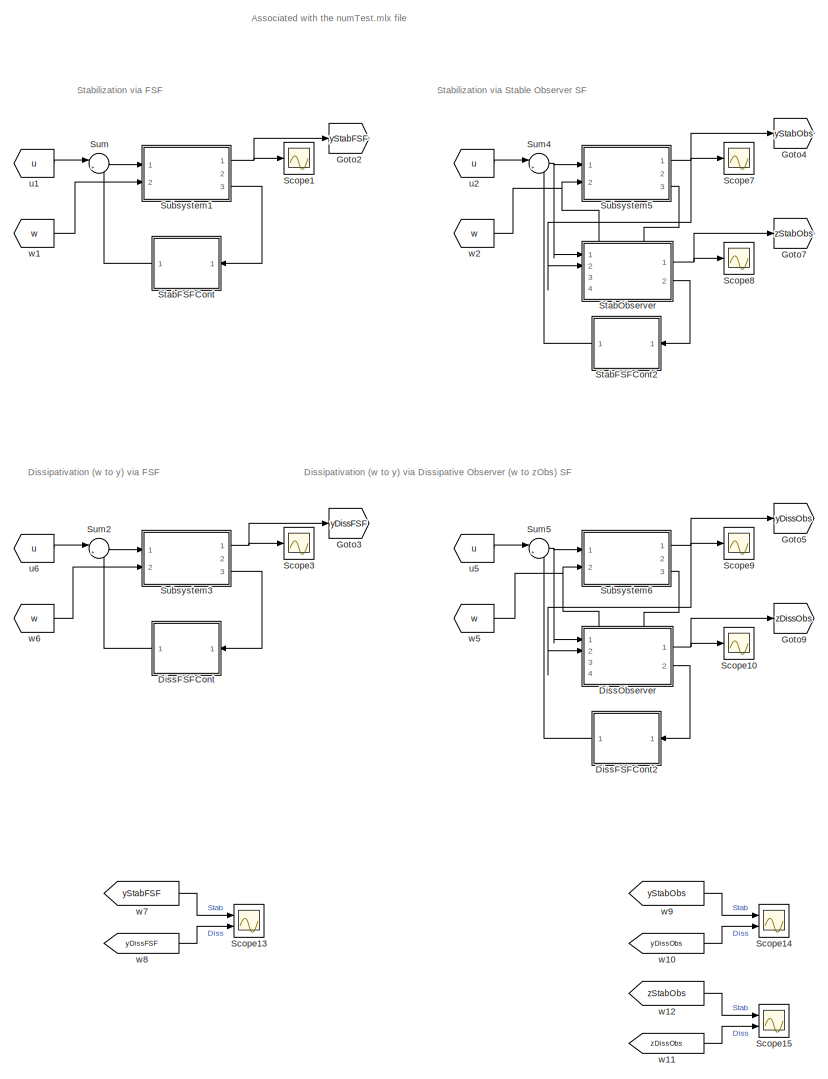
[diagram: root canvas - part 1/3, center side, full height]
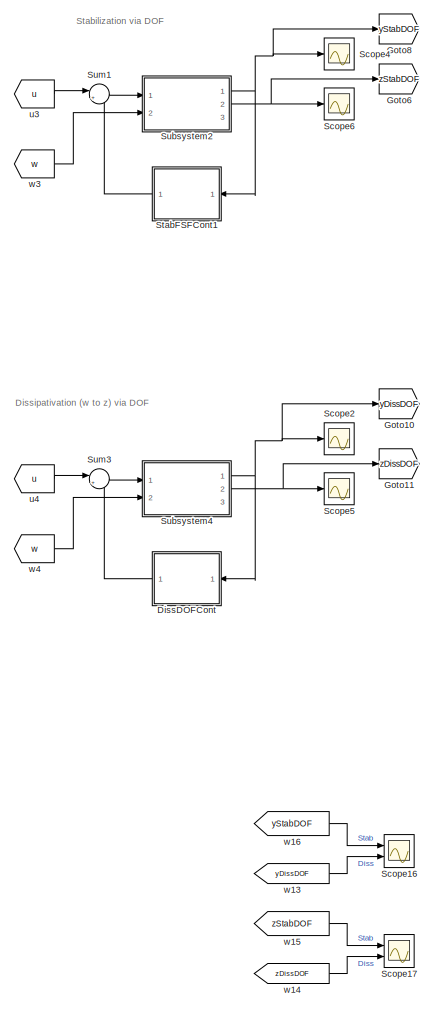
[diagram: root canvas - part 2/3, right side, full height]
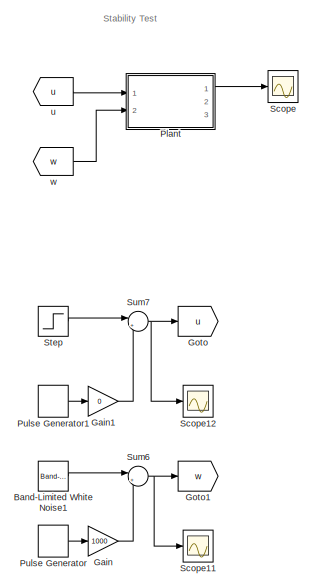
[diagram: root canvas - part 3/3, middle left region]
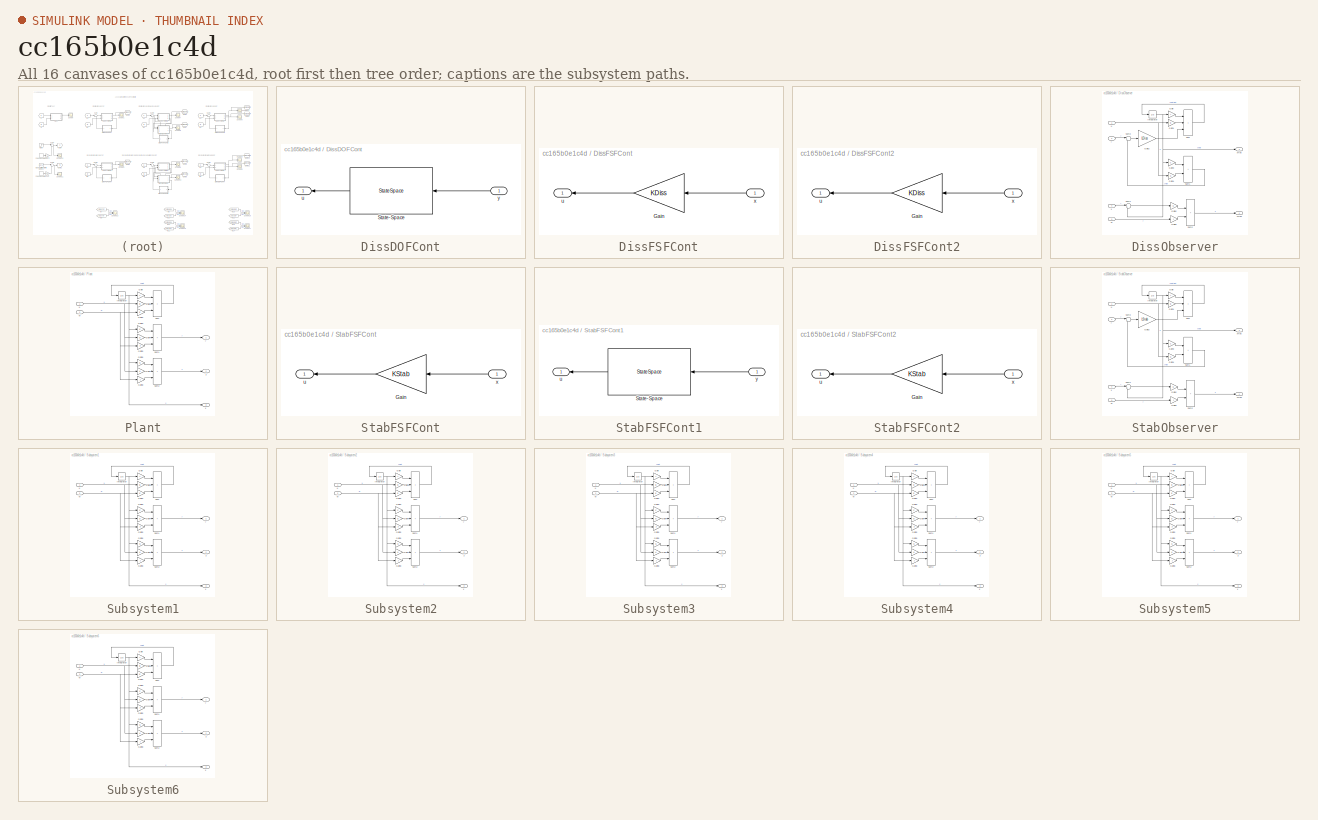
[diagram: thumbnail index - all 16 canvases of the model, root first then tree order]
MODEL slx_cc165b0e1c4d
KIND model
CONFIG AbsTol = auto
CONFIG EnableMultiTasking = off
CONFIG FixedStep = auto
CONFIG MaxStep = auto
CONFIG MinStep = auto
CONFIG RelTol = 1e-3
CONFIG SampleTimeConstraint = Unconstrained
CONFIG SolverName = VariableStepAuto
CONFIG StartTime = 0.0
CONFIG StopTime = 10.0
BLOCK [Reference] Band-Limited White Noise1  REF=simulink/Sources/Band-Limited
White Noise
  Ports = [0, 1]
  SourceBlock = simulink/Sources/Band-Limited\nWhite Noise
  SourceProductBaseCode = SL
  SourceType = Band-Limited White Noise.
BLOCK [SubSystem] DissDOFCont
  Ports = [1, 1]
  RequestExecContextInheritance = off
BLOCK [StateSpace] DissDOFCont/State-Space
  A = AcDiss
  B = BcDiss
  C = CcDiss
  D = DcDiss
  InitialCondition = zeros(n,1)
  Ports = [1, 1]
BLOCK [Outport] DissDOFCont/u
BLOCK [Inport] DissDOFCont/y
BLOCK [SubSystem] DissFSFCont
  Ports = [1, 1]
  RequestExecContextInheritance = off
BLOCK [Gain] DissFSFCont/Gain
  Gain = KDiss
  Multiplication = Matrix(K*u)
BLOCK [Outport] DissFSFCont/u
BLOCK [Inport] DissFSFCont/x
BLOCK [SubSystem] DissFSFCont2
  Ports = [1, 1]
  RequestExecContextInheritance = off
BLOCK [Gain] DissFSFCont2/Gain
  Gain = KDiss
  Multiplication = Matrix(K*u)
BLOCK [Outport] DissFSFCont2/u
BLOCK [Inport] DissFSFCont2/x
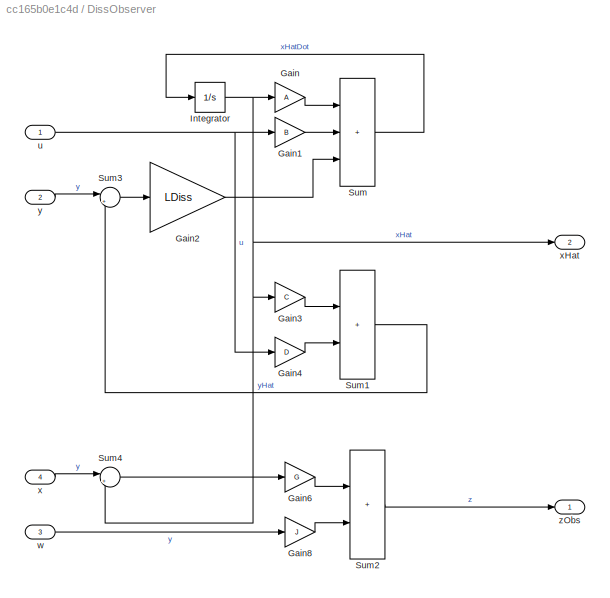
BLOCK [SubSystem] DissObserver
  PortSchema = {"entries":[{"content":{"sides":[{"content":{"connectorIds":["In1","In2"]},"type":"ConnectorPlacement.EquallySpacedRectSide","uuid":"bb89ae44-d021-4487-97ea-d884edbfbdc6"},{"content":{"connectorIds":["Out1","Out2"],"side":"RIGHT"},"type":"ConnectorPlacement.EquallySpacedRectSide","uuid":"8b439939-30ad-482f-a8e7-d460793e5232"},{"content":{"connectorIds":["In3","In4"],"side":"TOP"},"type":"Connector...<+264ch>
  Ports = [4, 2]
  RequestExecContextInheritance = off
BLOCK [Gain] DissObserver/Gain
  Gain = A
  Multiplication = Matrix(K*u)
BLOCK [Gain] DissObserver/Gain1
  Gain = B
  Multiplication = Matrix(K*u)
BLOCK [Gain] DissObserver/Gain2
  Gain = LDiss
  Multiplication = Matrix(K*u)
BLOCK [Gain] DissObserver/Gain3
  Gain = C
  Multiplication = Matrix(K*u)
BLOCK [Gain] DissObserver/Gain4
  Gain = D
  Multiplication = Matrix(K*u)
BLOCK [Gain] DissObserver/Gain6
  Gain = G
  Multiplication = Matrix(K*u)
BLOCK [Gain] DissObserver/Gain8
  Gain = J
  Multiplication = Matrix(K*u)
BLOCK [Integrator] DissObserver/Integrator
  InitialCondition = zeros(n,1)
  Ports = [1, 1]
BLOCK [Sum] DissObserver/Sum
  IconShape = rectangular
  Inputs = +++
  Ports = [3, 1]
BLOCK [Sum] DissObserver/Sum1
  IconShape = rectangular
  Ports = [2, 1]
BLOCK [Sum] DissObserver/Sum2
  IconShape = rectangular
  Ports = [2, 1]
BLOCK [Sum] DissObserver/Sum3
  Inputs = |+-
  Ports = [2, 1]
BLOCK [Sum] DissObserver/Sum4
  Inputs = |+-
  Ports = [2, 1]
BLOCK [Inport] DissObserver/u
BLOCK [Inport] DissObserver/w
  Port = 3
BLOCK [Inport] DissObserver/x
  Port = 4
BLOCK [Outport] DissObserver/xHat
  Port = 2
BLOCK [Inport] DissObserver/y
  Port = 2
BLOCK [Outport] DissObserver/zObs
BLOCK [Gain] Gain
  Gain = 1000
BLOCK [Gain] Gain1
  Gain = 0
BLOCK [Goto] Goto
  GotoTag = u
BLOCK [Goto] Goto1
  GotoTag = w
BLOCK [Goto] Goto10
  GotoTag = yDissDOF
BLOCK [Goto] Goto11
  GotoTag = zDissDOF
BLOCK [Goto] Goto2
  GotoTag = yStabFSF
BLOCK [Goto] Goto3
  GotoTag = yDissFSF
BLOCK [Goto] Goto4
  GotoTag = yStabObs
BLOCK [Goto] Goto5
  GotoTag = yDissObs
BLOCK [Goto] Goto6
  GotoTag = zStabDOF
BLOCK [Goto] Goto7
  GotoTag = zStabObs
BLOCK [Goto] Goto8
  GotoTag = yStabDOF
BLOCK [Goto] Goto9
  GotoTag = zDissObs
BLOCK [SubSystem] Plant
  Ports = [2, 3]
  RequestExecContextInheritance = off
BLOCK [Gain] Plant/Gain
  Gain = A
  Multiplication = Matrix(K*u)
BLOCK [Gain] Plant/Gain1
  Gain = B
  Multiplication = Matrix(K*u)
BLOCK [Gain] Plant/Gain2
  Gain = E
  Multiplication = Matrix(K*u)
BLOCK [Gain] Plant/Gain3
  Gain = C
  Multiplication = Matrix(K*u)
BLOCK [Gain] Plant/Gain4
  Gain = D
  Multiplication = Matrix(K*u)
BLOCK [Gain] Plant/Gain5
  Gain = F
  Multiplication = Matrix(K*u)
BLOCK [Gain] Plant/Gain6
  Gain = G
  Multiplication = Matrix(K*u)
BLOCK [Gain] Plant/Gain7
  Gain = H
  Multiplication = Matrix(K*u)
BLOCK [Gain] Plant/Gain8
  Gain = J
  Multiplication = Matrix(K*u)
BLOCK [Integrator] Plant/Integrator
  InitialCondition = 10*ones(n,1)
  Ports = [1, 1]
BLOCK [Sum] Plant/Sum
  IconShape = rectangular
  Inputs = +++
  Ports = [3, 1]
BLOCK [Sum] Plant/Sum1
  IconShape = rectangular
  Inputs = +++
  Ports = [3, 1]
BLOCK [Sum] Plant/Sum2
  IconShape = rectangular
  Inputs = +++
  Ports = [3, 1]
BLOCK [Inport] Plant/u
BLOCK [Inport] Plant/w
  Port = 2
BLOCK [Outport] Plant/x
  Port = 3
BLOCK [Outport] Plant/y
BLOCK [Outport] Plant/z
  Port = 2
BLOCK [DiscretePulseGenerator] Pulse Generator
  Period = 10
  PhaseDelay = 5
  Ports = [0, 1]
  PulseType = Time based
BLOCK [DiscretePulseGenerator] Pulse Generator1
  Period = 10
  PhaseDelay = 5
  Ports = [0, 1]
  PulseType = Time based
  PulseWidth = 10
BLOCK [Scope] Scope
  Floating = off
  NumInputPorts = 1
  Ports = [1]
  ScopeSpecificationString = Simulink.scopes.TimeScopeBlockCfg('CurrentConfiguration', extmgr.ConfigurationSet(extmgr.Configuration('Core','General UI',true),extmgr.Configuration('Core','Source UI',true),extmgr.Configuration('Sources','WiredSimulink',true),extmgr.Configuration('Visuals','Time Domain',true,'SerializedDisplays',{struct('MinYLimReal','-82.42502','MaxYLimReal','23.19569','YLabelReal','','MinYLimMag','0.00000','Ma...<+1364ch>
BLOCK [Scope] Scope1
  Floating = off
  NumInputPorts = 1
  Ports = [1]
  ScopeSpecificationString = Simulink.scopes.TimeScopeBlockCfg('CurrentConfiguration', extmgr.ConfigurationSet(extmgr.Configuration('Core','General UI',true),extmgr.Configuration('Core','Source UI',true),extmgr.Configuration('Sources','WiredSimulink',true,'DataLoggingVariableName','ScopeData1'),extmgr.Configuration('Visuals','Time Domain',true,'SerializedDisplays',{struct('MinYLimReal','-81.24557','MaxYLimReal','22.59','YLabe...<+1400ch>
BLOCK [Scope] Scope10
  Floating = off
  NumInputPorts = 1
  Ports = [1]
  ScopeSpecificationString = Simulink.scopes.TimeScopeBlockCfg('CurrentConfiguration', extmgr.ConfigurationSet(extmgr.Configuration('Core','General UI',true),extmgr.Configuration('Core','Source UI',true),extmgr.Configuration('Sources','WiredSimulink',true,'DataLoggingVariableName','ScopeData9'),extmgr.Configuration('Visuals','Time Domain',true,'SerializedDisplays',{struct('MinYLimReal','-42.15469','MaxYLimReal','226.94569','Y...<+1412ch>
BLOCK [Scope] Scope11
  Floating = off
  NumInputPorts = 1
  Ports = [1]
  ScopeSpecificationString = Simulink.scopes.TimeScopeBlockCfg('CurrentConfiguration', extmgr.ConfigurationSet(extmgr.Configuration('Core','General UI',true),extmgr.Configuration('Core','Source UI',true),extmgr.Configuration('Sources','WiredSimulink',true,'DataLoggingVariableName','ScopeData11'),extmgr.Configuration('Visuals','Time Domain',true,'SerializedDisplays',{struct('MinYLimReal','-167.96877','MaxYLimReal','1151.20106'...<+1413ch>
BLOCK [Scope] Scope12
  Floating = off
  NumInputPorts = 1
  Ports = [1]
  ScopeSpecificationString = Simulink.scopes.TimeScopeBlockCfg('CurrentConfiguration', extmgr.ConfigurationSet(extmgr.Configuration('Core','General UI',true),extmgr.Configuration('Core','Source UI',true),extmgr.Configuration('Sources','WiredSimulink',true,'DataLoggingVariableName','ScopeData12'),extmgr.Configuration('Visuals','Time Domain',true,'SerializedDisplays',{struct('MinYLimReal','-0.125','MaxYLimReal','1.125','YLabelR...<+1383ch>
BLOCK [Scope] Scope13
  Floating = off
  NumInputPorts = 2
  Ports = [2]
  ScopeSpecificationString = Simulink.scopes.TimeScopeBlockCfg('CurrentConfiguration', extmgr.ConfigurationSet(extmgr.Configuration('Core','General UI',true),extmgr.Configuration('Core','Source UI',true),extmgr.Configuration('Sources','WiredSimulink',true,'DataLoggingVariableName','ScopeData13'),extmgr.Configuration('Visuals','Time Domain',true,'SerializedDisplays',{struct('MinYLimReal','-189817338593271.53125','MaxYLimReal',...<+1493ch>
BLOCK [Scope] Scope14
  Floating = off
  NumInputPorts = 2
  Ports = [2]
  ScopeSpecificationString = Simulink.scopes.TimeScopeBlockCfg('CurrentConfiguration', extmgr.ConfigurationSet(extmgr.Configuration('Core','General UI',true),extmgr.Configuration('Core','Source UI',true),extmgr.Configuration('Sources','WiredSimulink',true,'DataLoggingVariableName','ScopeData14'),extmgr.Configuration('Visuals','Time Domain',true,'SerializedDisplays',{struct('MinYLimReal','-82.3623','MaxYLimReal','23.56856','YL...<+1390ch>
BLOCK [Scope] Scope15
  Floating = off
  NumInputPorts = 2
  Ports = [2]
  ScopeSpecificationString = Simulink.scopes.TimeScopeBlockCfg('CurrentConfiguration', extmgr.ConfigurationSet(extmgr.Configuration('Core','General UI',true),extmgr.Configuration('Core','Source UI',true),extmgr.Configuration('Sources','WiredSimulink',true,'DataLoggingVariableName','ScopeData15'),extmgr.Configuration('Visuals','Time Domain',true,'SerializedDisplays',{struct('MinYLimReal','-42.15469','MaxYLimReal','226.94569','...<+1406ch>
BLOCK [Scope] Scope16
  Floating = off
  NumInputPorts = 2
  Ports = [2]
  ScopeSpecificationString = Simulink.scopes.TimeScopeBlockCfg('CurrentConfiguration', extmgr.ConfigurationSet(extmgr.Configuration('Core','General UI',true),extmgr.Configuration('Core','Source UI',true),extmgr.Configuration('Sources','WiredSimulink',true,'DataLoggingVariableName','ScopeData16'),extmgr.Configuration('Visuals','Time Domain',true,'SerializedDisplays',{struct('MinYLimReal','-82.42502','MaxYLimReal','23.19569','Y...<+1402ch>
BLOCK [Scope] Scope17
  Floating = off
  NumInputPorts = 2
  Ports = [2]
  ScopeSpecificationString = Simulink.scopes.TimeScopeBlockCfg('CurrentConfiguration', extmgr.ConfigurationSet(extmgr.Configuration('Core','General UI',true),extmgr.Configuration('Core','Source UI',true),extmgr.Configuration('Sources','WiredSimulink',true,'DataLoggingVariableName','ScopeData17'),extmgr.Configuration('Visuals','Time Domain',true,'SerializedDisplays',{struct('MinYLimReal','-43.31637','MaxYLimReal','227.07477','...<+1451ch>
BLOCK [Scope] Scope2
  Floating = off
  NumInputPorts = 1
  Ports = [1]
  ScopeSpecificationString = Simulink.scopes.TimeScopeBlockCfg('CurrentConfiguration', extmgr.ConfigurationSet(extmgr.Configuration('Core','General UI',true),extmgr.Configuration('Core','Source UI',true),extmgr.Configuration('Sources','WiredSimulink',true,'DataLoggingVariableName','ScopeData2'),extmgr.Configuration('Visuals','Time Domain',true,'SerializedDisplays',{struct('MinYLimReal','-82.42502','MaxYLimReal','23.19569','YL...<+1408ch>
BLOCK [Scope] Scope3
  Floating = off
  NumInputPorts = 1
  Ports = [1]
  ScopeSpecificationString = Simulink.scopes.TimeScopeBlockCfg('CurrentConfiguration', extmgr.ConfigurationSet(extmgr.Configuration('Core','General UI',true),extmgr.Configuration('Core','Source UI',true),extmgr.Configuration('Sources','WiredSimulink',true,'DataLoggingVariableName','ScopeData3'),extmgr.Configuration('Visuals','Time Domain',true,'SerializedDisplays',{struct('MinYLimReal','-189817338593271.53125','MaxYLimReal','...<+1507ch>
BLOCK [Scope] Scope4
  Floating = off
  NumInputPorts = 1
  Ports = [1]
  ScopeSpecificationString = Simulink.scopes.TimeScopeBlockCfg('CurrentConfiguration', extmgr.ConfigurationSet(extmgr.Configuration('Core','General UI',true),extmgr.Configuration('Core','Source UI',true),extmgr.Configuration('Sources','WiredSimulink',true,'DataLoggingVariableName','ScopeData4'),extmgr.Configuration('Visuals','Time Domain',true,'SerializedDisplays',{struct('MinYLimReal','-82.09708','MaxYLimReal','22.78767','YL...<+1408ch>
BLOCK [Scope] Scope5
  Floating = off
  NumInputPorts = 1
  Ports = [1]
  ScopeSpecificationString = Simulink.scopes.TimeScopeBlockCfg('CurrentConfiguration', extmgr.ConfigurationSet(extmgr.Configuration('Core','General UI',true),extmgr.Configuration('Core','Source UI',true),extmgr.Configuration('Sources','WiredSimulink',true,'DataLoggingVariableName','ScopeData5'),extmgr.Configuration('Visuals','Time Domain',true,'SerializedDisplays',{struct('MinYLimReal','-43.31637','MaxYLimReal','227.07477','Y...<+1412ch>
BLOCK [Scope] Scope6
  Floating = off
  NumInputPorts = 1
  Ports = [1]
  ScopeSpecificationString = Simulink.scopes.TimeScopeBlockCfg('CurrentConfiguration', extmgr.ConfigurationSet(extmgr.Configuration('Core','General UI',true),extmgr.Configuration('Core','Source UI',true),extmgr.Configuration('Sources','WiredSimulink',true,'DataLoggingVariableName','ScopeData6'),extmgr.Configuration('Visuals','Time Domain',true,'SerializedDisplays',{struct('MinYLimReal','-2571958875211886112014336.00000','MaxY...<+1607ch>
BLOCK [Scope] Scope7
  Floating = off
  NumInputPorts = 1
  Ports = [1]
  ScopeSpecificationString = Simulink.scopes.TimeScopeBlockCfg('CurrentConfiguration', extmgr.ConfigurationSet(extmgr.Configuration('Core','General UI',true),extmgr.Configuration('Core','Source UI',true),extmgr.Configuration('Sources','WiredSimulink',true,'DataLoggingVariableName','ScopeData7'),extmgr.Configuration('Visuals','Time Domain',true,'SerializedDisplays',{struct('MinYLimReal','-82.0486','MaxYLimReal','22.82434','YLa...<+1402ch>
BLOCK [Scope] Scope8
  Floating = off
  NumInputPorts = 1
  Ports = [1]
  ScopeSpecificationString = Simulink.scopes.TimeScopeBlockCfg('CurrentConfiguration', extmgr.ConfigurationSet(extmgr.Configuration('Core','General UI',true),extmgr.Configuration('Core','Source UI',true),extmgr.Configuration('Sources','WiredSimulink',true,'DataLoggingVariableName','ScopeData8'),extmgr.Configuration('Visuals','Time Domain',true,'SerializedDisplays',{struct('MinYLimReal','-41.92634','MaxYLimReal','226.92032','Y...<+1412ch>
BLOCK [Scope] Scope9
  Floating = off
  NumInputPorts = 1
  Ports = [1]
  ScopeSpecificationString = Simulink.scopes.TimeScopeBlockCfg('CurrentConfiguration', extmgr.ConfigurationSet(extmgr.Configuration('Core','General UI',true),extmgr.Configuration('Core','Source UI',true),extmgr.Configuration('Sources','WiredSimulink',true,'DataLoggingVariableName','ScopeData10'),extmgr.Configuration('Visuals','Time Domain',true,'SerializedDisplays',{struct('MinYLimReal','-82.3623','MaxYLimReal','23.56856','YL...<+1405ch>
BLOCK [SubSystem] StabFSFCont
  Ports = [1, 1]
  RequestExecContextInheritance = off
BLOCK [Gain] StabFSFCont/Gain
  Gain = KStab
  Multiplication = Matrix(K*u)
BLOCK [Outport] StabFSFCont/u
BLOCK [Inport] StabFSFCont/x
BLOCK [SubSystem] StabFSFCont1
  Ports = [1, 1]
  RequestExecContextInheritance = off
BLOCK [StateSpace] StabFSFCont1/State-Space
  A = AcStab
  B = BcStab
  C = CcStab
  D = DcStab
  InitialCondition = zeros(n,1)
  Ports = [1, 1]
BLOCK [Outport] StabFSFCont1/u
BLOCK [Inport] StabFSFCont1/y
BLOCK [SubSystem] StabFSFCont2
  Ports = [1, 1]
  RequestExecContextInheritance = off
BLOCK [Gain] StabFSFCont2/Gain
  Gain = KStab
  Multiplication = Matrix(K*u)
BLOCK [Outport] StabFSFCont2/u
BLOCK [Inport] StabFSFCont2/x
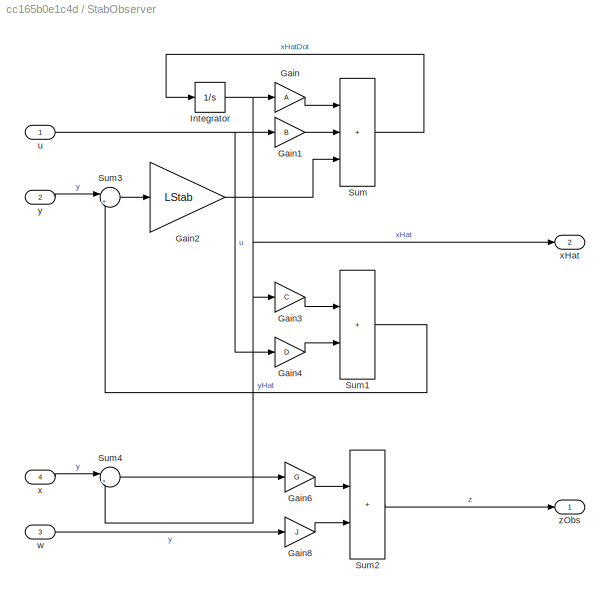
BLOCK [SubSystem] StabObserver
  PortSchema = {"entries":[{"content":{"sides":[{"content":{"connectorIds":["In1","In2"]},"type":"ConnectorPlacement.EquallySpacedRectSide","uuid":"bb89ae44-d021-4487-97ea-d884edbfbdc6"},{"content":{"connectorIds":["Out1","Out2"],"side":"RIGHT"},"type":"ConnectorPlacement.EquallySpacedRectSide","uuid":"8b439939-30ad-482f-a8e7-d460793e5232"},{"content":{"connectorIds":["In3","In4"],"side":"TOP"},"type":"Connector...<+264ch>
  Ports = [4, 2]
  RequestExecContextInheritance = off
BLOCK [Gain] StabObserver/Gain
  Gain = A
  Multiplication = Matrix(K*u)
BLOCK [Gain] StabObserver/Gain1
  Gain = B
  Multiplication = Matrix(K*u)
BLOCK [Gain] StabObserver/Gain2
  Gain = LStab
  Multiplication = Matrix(K*u)
BLOCK [Gain] StabObserver/Gain3
  Gain = C
  Multiplication = Matrix(K*u)
BLOCK [Gain] StabObserver/Gain4
  Gain = D
  Multiplication = Matrix(K*u)
BLOCK [Gain] StabObserver/Gain6
  Gain = G
  Multiplication = Matrix(K*u)
BLOCK [Gain] StabObserver/Gain8
  Gain = J
  Multiplication = Matrix(K*u)
BLOCK [Integrator] StabObserver/Integrator
  InitialCondition = zeros(n,1)
  Ports = [1, 1]
BLOCK [Sum] StabObserver/Sum
  IconShape = rectangular
  Inputs = +++
  Ports = [3, 1]
BLOCK [Sum] StabObserver/Sum1
  IconShape = rectangular
  Ports = [2, 1]
BLOCK [Sum] StabObserver/Sum2
  IconShape = rectangular
  Ports = [2, 1]
BLOCK [Sum] StabObserver/Sum3
  Inputs = |+-
  Ports = [2, 1]
BLOCK [Sum] StabObserver/Sum4
  Inputs = |+-
  Ports = [2, 1]
BLOCK [Inport] StabObserver/u
BLOCK [Inport] StabObserver/w
  Port = 3
BLOCK [Inport] StabObserver/x
  Port = 4
BLOCK [Outport] StabObserver/xHat
  Port = 2
BLOCK [Inport] StabObserver/y
  Port = 2
BLOCK [Outport] StabObserver/zObs
BLOCK [Step] Step
  SampleTime = 0
BLOCK [SubSystem] Subsystem1
  Ports = [2, 3]
  RequestExecContextInheritance = off
BLOCK [Gain] Subsystem1/Gain
  Gain = A
  Multiplication = Matrix(K*u)
BLOCK [Gain] Subsystem1/Gain1
  Gain = B
  Multiplication = Matrix(K*u)
BLOCK [Gain] Subsystem1/Gain2
  Gain = E
  Multiplication = Matrix(K*u)
BLOCK [Gain] Subsystem1/Gain3
  Gain = C
  Multiplication = Matrix(K*u)
BLOCK [Gain] Subsystem1/Gain4
  Gain = D
  Multiplication = Matrix(K*u)
BLOCK [Gain] Subsystem1/Gain5
  Gain = F
  Multiplication = Matrix(K*u)
BLOCK [Gain] Subsystem1/Gain6
  Gain = G
  Multiplication = Matrix(K*u)
BLOCK [Gain] Subsystem1/Gain7
  Gain = H
  Multiplication = Matrix(K*u)
BLOCK [Gain] Subsystem1/Gain8
  Gain = J
  Multiplication = Matrix(K*u)
BLOCK [Integrator] Subsystem1/Integrator
  InitialCondition = 10*ones(n,1)
  Ports = [1, 1]
BLOCK [Sum] Subsystem1/Sum
  IconShape = rectangular
  Inputs = +++
  Ports = [3, 1]
BLOCK [Sum] Subsystem1/Sum1
  IconShape = rectangular
  Inputs = +++
  Ports = [3, 1]
BLOCK [Sum] Subsystem1/Sum2
  IconShape = rectangular
  Inputs = +++
  Ports = [3, 1]
BLOCK [Inport] Subsystem1/u
BLOCK [Inport] Subsystem1/w
  Port = 2
BLOCK [Outport] Subsystem1/x
  Port = 3
BLOCK [Outport] Subsystem1/y
BLOCK [Outport] Subsystem1/z
  Port = 2
BLOCK [SubSystem] Subsystem2
  Ports = [2, 3]
  RequestExecContextInheritance = off
BLOCK [Gain] Subsystem2/Gain
  Gain = A
  Multiplication = Matrix(K*u)
BLOCK [Gain] Subsystem2/Gain1
  Gain = B
  Multiplication = Matrix(K*u)
BLOCK [Gain] Subsystem2/Gain2
  Gain = E
  Multiplication = Matrix(K*u)
BLOCK [Gain] Subsystem2/Gain3
  Gain = C
  Multiplication = Matrix(K*u)
BLOCK [Gain] Subsystem2/Gain4
  Gain = D
  Multiplication = Matrix(K*u)
BLOCK [Gain] Subsystem2/Gain5
  Gain = F
  Multiplication = Matrix(K*u)
BLOCK [Gain] Subsystem2/Gain6
  Gain = G
  Multiplication = Matrix(K*u)
BLOCK [Gain] Subsystem2/Gain7
  Gain = H
  Multiplication = Matrix(K*u)
BLOCK [Gain] Subsystem2/Gain8
  Gain = J
  Multiplication = Matrix(K*u)
BLOCK [Integrator] Subsystem2/Integrator
  InitialCondition = 10*ones(n,1)
  Ports = [1, 1]
BLOCK [Sum] Subsystem2/Sum
  IconShape = rectangular
  Inputs = +++
  Ports = [3, 1]
BLOCK [Sum] Subsystem2/Sum1
  IconShape = rectangular
  Inputs = +++
  Ports = [3, 1]
BLOCK [Sum] Subsystem2/Sum2
  IconShape = rectangular
  Inputs = +++
  Ports = [3, 1]
BLOCK [Inport] Subsystem2/u
BLOCK [Inport] Subsystem2/w
  Port = 2
BLOCK [Outport] Subsystem2/x
  Port = 3
BLOCK [Outport] Subsystem2/y
BLOCK [Outport] Subsystem2/z
  Port = 2
BLOCK [SubSystem] Subsystem3
  Ports = [2, 3]
  RequestExecContextInheritance = off
BLOCK [Gain] Subsystem3/Gain
  Gain = A
  Multiplication = Matrix(K*u)
BLOCK [Gain] Subsystem3/Gain1
  Gain = B
  Multiplication = Matrix(K*u)
BLOCK [Gain] Subsystem3/Gain2
  Gain = E
  Multiplication = Matrix(K*u)
BLOCK [Gain] Subsystem3/Gain3
  Gain = C
  Multiplication = Matrix(K*u)
BLOCK [Gain] Subsystem3/Gain4
  Gain = D
  Multiplication = Matrix(K*u)
BLOCK [Gain] Subsystem3/Gain5
  Gain = F
  Multiplication = Matrix(K*u)
BLOCK [Gain] Subsystem3/Gain6
  Gain = G
  Multiplication = Matrix(K*u)
BLOCK [Gain] Subsystem3/Gain7
  Gain = H
  Multiplication = Matrix(K*u)
BLOCK [Gain] Subsystem3/Gain8
  Gain = J
  Multiplication = Matrix(K*u)
BLOCK [Integrator] Subsystem3/Integrator
  InitialCondition = 10*ones(n,1)
  Ports = [1, 1]
BLOCK [Sum] Subsystem3/Sum
  IconShape = rectangular
  Inputs = +++
  Ports = [3, 1]
BLOCK [Sum] Subsystem3/Sum1
  IconShape = rectangular
  Inputs = +++
  Ports = [3, 1]
BLOCK [Sum] Subsystem3/Sum2
  IconShape = rectangular
  Inputs = +++
  Ports = [3, 1]
BLOCK [Inport] Subsystem3/u
BLOCK [Inport] Subsystem3/w
  Port = 2
BLOCK [Outport] Subsystem3/x
  Port = 3
BLOCK [Outport] Subsystem3/y
BLOCK [Outport] Subsystem3/z
  Port = 2
BLOCK [SubSystem] Subsystem4
  Ports = [2, 3]
  RequestExecContextInheritance = off
BLOCK [Gain] Subsystem4/Gain
  Gain = A
  Multiplication = Matrix(K*u)
BLOCK [Gain] Subsystem4/Gain1
  Gain = B
  Multiplication = Matrix(K*u)
BLOCK [Gain] Subsystem4/Gain2
  Gain = E
  Multiplication = Matrix(K*u)
BLOCK [Gain] Subsystem4/Gain3
  Gain = C
  Multiplication = Matrix(K*u)
BLOCK [Gain] Subsystem4/Gain4
  Gain = D
  Multiplication = Matrix(K*u)
BLOCK [Gain] Subsystem4/Gain5
  Gain = F
  Multiplication = Matrix(K*u)
BLOCK [Gain] Subsystem4/Gain6
  Gain = G
  Multiplication = Matrix(K*u)
BLOCK [Gain] Subsystem4/Gain7
  Gain = H
  Multiplication = Matrix(K*u)
BLOCK [Gain] Subsystem4/Gain8
  Gain = J
  Multiplication = Matrix(K*u)
BLOCK [Integrator] Subsystem4/Integrator
  InitialCondition = 10*ones(n,1)
  Ports = [1, 1]
BLOCK [Sum] Subsystem4/Sum
  IconShape = rectangular
  Inputs = +++
  Ports = [3, 1]
BLOCK [Sum] Subsystem4/Sum1
  IconShape = rectangular
  Inputs = +++
  Ports = [3, 1]
BLOCK [Sum] Subsystem4/Sum2
  IconShape = rectangular
  Inputs = +++
  Ports = [3, 1]
BLOCK [Inport] Subsystem4/u
BLOCK [Inport] Subsystem4/w
  Port = 2
BLOCK [Outport] Subsystem4/x
  Port = 3
BLOCK [Outport] Subsystem4/y
BLOCK [Outport] Subsystem4/z
  Port = 2
BLOCK [SubSystem] Subsystem5
  Ports = [2, 3]
  RequestExecContextInheritance = off
BLOCK [Gain] Subsystem5/Gain
  Gain = A
  Multiplication = Matrix(K*u)
BLOCK [Gain] Subsystem5/Gain1
  Gain = B
  Multiplication = Matrix(K*u)
BLOCK [Gain] Subsystem5/Gain2
  Gain = E
  Multiplication = Matrix(K*u)
BLOCK [Gain] Subsystem5/Gain3
  Gain = C
  Multiplication = Matrix(K*u)
BLOCK [Gain] Subsystem5/Gain4
  Gain = D
  Multiplication = Matrix(K*u)
BLOCK [Gain] Subsystem5/Gain5
  Gain = F
  Multiplication = Matrix(K*u)
BLOCK [Gain] Subsystem5/Gain6
  Gain = G
  Multiplication = Matrix(K*u)
BLOCK [Gain] Subsystem5/Gain7
  Gain = H
  Multiplication = Matrix(K*u)
BLOCK [Gain] Subsystem5/Gain8
  Gain = J
  Multiplication = Matrix(K*u)
BLOCK [Integrator] Subsystem5/Integrator
  InitialCondition = 10*ones(n,1)
  Ports = [1, 1]
BLOCK [Sum] Subsystem5/Sum
  IconShape = rectangular
  Inputs = +++
  Ports = [3, 1]
BLOCK [Sum] Subsystem5/Sum1
  IconShape = rectangular
  Inputs = +++
  Ports = [3, 1]
BLOCK [Sum] Subsystem5/Sum2
  IconShape = rectangular
  Inputs = +++
  Ports = [3, 1]
BLOCK [Inport] Subsystem5/u
BLOCK [Inport] Subsystem5/w
  Port = 2
BLOCK [Outport] Subsystem5/x
  Port = 3
BLOCK [Outport] Subsystem5/y
BLOCK [Outport] Subsystem5/z
  Port = 2
BLOCK [SubSystem] Subsystem6
  Ports = [2, 3]
  RequestExecContextInheritance = off
BLOCK [Gain] Subsystem6/Gain
  Gain = A
  Multiplication = Matrix(K*u)
BLOCK [Gain] Subsystem6/Gain1
  Gain = B
  Multiplication = Matrix(K*u)
BLOCK [Gain] Subsystem6/Gain2
  Gain = E
  Multiplication = Matrix(K*u)
BLOCK [Gain] Subsystem6/Gain3
  Gain = C
  Multiplication = Matrix(K*u)
BLOCK [Gain] Subsystem6/Gain4
  Gain = D
  Multiplication = Matrix(K*u)
BLOCK [Gain] Subsystem6/Gain5
  Gain = F
  Multiplication = Matrix(K*u)
BLOCK [Gain] Subsystem6/Gain6
  Gain = G
  Multiplication = Matrix(K*u)
BLOCK [Gain] Subsystem6/Gain7
  Gain = H
  Multiplication = Matrix(K*u)
BLOCK [Gain] Subsystem6/Gain8
  Gain = J
  Multiplication = Matrix(K*u)
BLOCK [Integrator] Subsystem6/Integrator
  InitialCondition = 10*ones(n,1)
  Ports = [1, 1]
BLOCK [Sum] Subsystem6/Sum
  IconShape = rectangular
  Inputs = +++
  Ports = [3, 1]
BLOCK [Sum] Subsystem6/Sum1
  IconShape = rectangular
  Inputs = +++
  Ports = [3, 1]
BLOCK [Sum] Subsystem6/Sum2
  IconShape = rectangular
  Inputs = +++
  Ports = [3, 1]
BLOCK [Inport] Subsystem6/u
BLOCK [Inport] Subsystem6/w
  Port = 2
BLOCK [Outport] Subsystem6/x
  Port = 3
BLOCK [Outport] Subsystem6/y
BLOCK [Outport] Subsystem6/z
  Port = 2
BLOCK [Sum] Sum
  Inputs = |++
  Ports = [2, 1]
BLOCK [Sum] Sum1
  Inputs = |++
  Ports = [2, 1]
BLOCK [Sum] Sum2
  Inputs = |++
  Ports = [2, 1]
BLOCK [Sum] Sum3
  Inputs = |++
  Ports = [2, 1]
BLOCK [Sum] Sum4
  Inputs = |++
  Ports = [2, 1]
BLOCK [Sum] Sum5
  Inputs = |++
  Ports = [2, 1]
BLOCK [Sum] Sum6
  Inputs = |++
  Ports = [2, 1]
BLOCK [Sum] Sum7
  Inputs = |++
  Ports = [2, 1]
BLOCK [From] u
  GotoTag = u
BLOCK [From] u1
  GotoTag = u
BLOCK [From] u2
  GotoTag = u
BLOCK [From] u3
  GotoTag = u
BLOCK [From] u4
  GotoTag = u
BLOCK [From] u5
  GotoTag = u
BLOCK [From] u6
  GotoTag = u
BLOCK [From] w
  GotoTag = w
BLOCK [From] w1
  GotoTag = w
BLOCK [From] w10
  GotoTag = yDissObs
BLOCK [From] w11
  GotoTag = zDissObs
BLOCK [From] w12
  GotoTag = zStabObs
BLOCK [From] w13
  GotoTag = yDissDOF
BLOCK [From] w14
  GotoTag = zDissDOF
BLOCK [From] w15
  GotoTag = zStabDOF
BLOCK [From] w16
  GotoTag = yStabDOF
BLOCK [From] w2
  GotoTag = w
BLOCK [From] w3
  GotoTag = w
BLOCK [From] w4
  GotoTag = w
BLOCK [From] w5
  GotoTag = w
BLOCK [From] w6
  GotoTag = w
BLOCK [From] w7
  GotoTag = yStabFSF
BLOCK [From] w8
  GotoTag = yDissFSF
BLOCK [From] w9
  GotoTag = yStabObs
ANNOTATION (root): Dissipativation (w to y) via Dissipative Observer (w to zObs) SF
ANNOTATION (root): Dissipativation (w to y) via FSF
ANNOTATION (root): Dissipativation (w to z) via DOF
ANNOTATION (root): Stability Test
ANNOTATION (root): Stabilization via DOF
ANNOTATION (root): Stabilization via FSF
ANNOTATION (root): Stabilization via Stable Observer SF
ANNOTATION (root): Associated with the numTest.mlx file
LINE Band-Limited White Noise1:1 -> Sum6:1
LINE DissDOFCont/State-Space:1 -> DissDOFCont/u:1
LINE DissDOFCont/y:1 -> DissDOFCont/State-Space:1
LINE DissDOFCont:1 -> Sum3:2
LINE DissFSFCont/Gain:1 -> DissFSFCont/u:1
LINE DissFSFCont/x:1 -> DissFSFCont/Gain:1
LINE DissFSFCont2/Gain:1 -> DissFSFCont2/u:1
LINE DissFSFCont2/x:1 -> DissFSFCont2/Gain:1
LINE DissFSFCont2:1 -> Sum5:2
LINE DissFSFCont:1 -> Sum2:2
LINE DissObserver/Gain1:1 -> DissObserver/Sum:2
LINE DissObserver/Gain2:1 -> DissObserver/Sum:3
LINE DissObserver/Gain3:1 -> DissObserver/Sum1:1
LINE DissObserver/Gain4:1 -> DissObserver/Sum1:2
LINE DissObserver/Gain6:1 -> DissObserver/Sum2:1
LINE DissObserver/Gain8:1 -> DissObserver/Sum2:2
LINE DissObserver/Gain:1 -> DissObserver/Sum:1
NET DissObserver/Integrator:1 -> DissObserver/Gain3:1, DissObserver/Gain:1, DissObserver/Sum4:2, DissObserver/xHat:1
LINE DissObserver/Sum1:1 -> DissObserver/Sum3:2
LINE DissObserver/Sum2:1 -> DissObserver/zObs:1
LINE DissObserver/Sum3:1 -> DissObserver/Gain2:1
LINE DissObserver/Sum4:1 -> DissObserver/Gain6:1
LINE DissObserver/Sum:1 -> DissObserver/Integrator:1
NET DissObserver/u:1 -> DissObserver/Gain1:1, DissObserver/Gain4:1
LINE DissObserver/w:1 -> DissObserver/Gain8:1
LINE DissObserver/x:1 -> DissObserver/Sum4:1
LINE DissObserver/y:1 -> DissObserver/Sum3:1
NET DissObserver:1 -> Goto9:1, Scope10:1
LINE DissObserver:2 -> DissFSFCont2:1
LINE Gain1:1 -> Sum7:2
LINE Gain:1 -> Sum6:2
LINE Plant/Gain1:1 -> Plant/Sum:2
LINE Plant/Gain2:1 -> Plant/Sum:3
LINE Plant/Gain3:1 -> Plant/Sum1:1
LINE Plant/Gain4:1 -> Plant/Sum1:2
LINE Plant/Gain5:1 -> Plant/Sum1:3
LINE Plant/Gain6:1 -> Plant/Sum2:1
LINE Plant/Gain7:1 -> Plant/Sum2:2
LINE Plant/Gain8:1 -> Plant/Sum2:3
LINE Plant/Gain:1 -> Plant/Sum:1
NET Plant/Integrator:1 -> Plant/Gain3:1, Plant/Gain6:1, Plant/Gain:1, Plant/x:1
LINE Plant/Sum1:1 -> Plant/y:1
LINE Plant/Sum2:1 -> Plant/z:1
LINE Plant/Sum:1 -> Plant/Integrator:1
NET Plant/u:1 -> Plant/Gain1:1, Plant/Gain4:1, Plant/Gain7:1
NET Plant/w:1 -> Plant/Gain2:1, Plant/Gain5:1, Plant/Gain8:1
LINE Plant:1 -> Scope:1
LINE Pulse Generator1:1 -> Gain1:1
LINE Pulse Generator:1 -> Gain:1
LINE StabFSFCont/Gain:1 -> StabFSFCont/u:1
LINE StabFSFCont/x:1 -> StabFSFCont/Gain:1
LINE StabFSFCont1/State-Space:1 -> StabFSFCont1/u:1
LINE StabFSFCont1/y:1 -> StabFSFCont1/State-Space:1
LINE StabFSFCont1:1 -> Sum1:2
LINE StabFSFCont2/Gain:1 -> StabFSFCont2/u:1
LINE StabFSFCont2/x:1 -> StabFSFCont2/Gain:1
LINE StabFSFCont2:1 -> Sum4:2
LINE StabFSFCont:1 -> Sum:2
LINE StabObserver/Gain1:1 -> StabObserver/Sum:2
LINE StabObserver/Gain2:1 -> StabObserver/Sum:3
LINE StabObserver/Gain3:1 -> StabObserver/Sum1:1
LINE StabObserver/Gain4:1 -> StabObserver/Sum1:2
LINE StabObserver/Gain6:1 -> StabObserver/Sum2:1
LINE StabObserver/Gain8:1 -> StabObserver/Sum2:2
LINE StabObserver/Gain:1 -> StabObserver/Sum:1
NET StabObserver/Integrator:1 -> StabObserver/Gain3:1, StabObserver/Gain:1, StabObserver/Sum4:2, StabObserver/xHat:1
LINE StabObserver/Sum1:1 -> StabObserver/Sum3:2
LINE StabObserver/Sum2:1 -> StabObserver/zObs:1
LINE StabObserver/Sum3:1 -> StabObserver/Gain2:1
LINE StabObserver/Sum4:1 -> StabObserver/Gain6:1
LINE StabObserver/Sum:1 -> StabObserver/Integrator:1
NET StabObserver/u:1 -> StabObserver/Gain1:1, StabObserver/Gain4:1
LINE StabObserver/w:1 -> StabObserver/Gain8:1
LINE StabObserver/x:1 -> StabObserver/Sum4:1
LINE StabObserver/y:1 -> StabObserver/Sum3:1
NET StabObserver:1 -> Goto7:1, Scope8:1
LINE StabObserver:2 -> StabFSFCont2:1
LINE Step:1 -> Sum7:1
LINE Subsystem1/Gain1:1 -> Subsystem1/Sum:2
LINE Subsystem1/Gain2:1 -> Subsystem1/Sum:3
LINE Subsystem1/Gain3:1 -> Subsystem1/Sum1:1
LINE Subsystem1/Gain4:1 -> Subsystem1/Sum1:2
LINE Subsystem1/Gain5:1 -> Subsystem1/Sum1:3
LINE Subsystem1/Gain6:1 -> Subsystem1/Sum2:1
LINE Subsystem1/Gain7:1 -> Subsystem1/Sum2:2
LINE Subsystem1/Gain8:1 -> Subsystem1/Sum2:3
LINE Subsystem1/Gain:1 -> Subsystem1/Sum:1
NET Subsystem1/Integrator:1 -> Subsystem1/Gain3:1, Subsystem1/Gain6:1, Subsystem1/Gain:1, Subsystem1/x:1
LINE Subsystem1/Sum1:1 -> Subsystem1/y:1
LINE Subsystem1/Sum2:1 -> Subsystem1/z:1
LINE Subsystem1/Sum:1 -> Subsystem1/Integrator:1
NET Subsystem1/u:1 -> Subsystem1/Gain1:1, Subsystem1/Gain4:1, Subsystem1/Gain7:1
NET Subsystem1/w:1 -> Subsystem1/Gain2:1, Subsystem1/Gain5:1, Subsystem1/Gain8:1
NET Subsystem1:1 -> Goto2:1, Scope1:1
LINE Subsystem1:3 -> StabFSFCont:1
LINE Subsystem2/Gain1:1 -> Subsystem2/Sum:2
LINE Subsystem2/Gain2:1 -> Subsystem2/Sum:3
LINE Subsystem2/Gain3:1 -> Subsystem2/Sum1:1
LINE Subsystem2/Gain4:1 -> Subsystem2/Sum1:2
LINE Subsystem2/Gain5:1 -> Subsystem2/Sum1:3
LINE Subsystem2/Gain6:1 -> Subsystem2/Sum2:1
LINE Subsystem2/Gain7:1 -> Subsystem2/Sum2:2
LINE Subsystem2/Gain8:1 -> Subsystem2/Sum2:3
LINE Subsystem2/Gain:1 -> Subsystem2/Sum:1
NET Subsystem2/Integrator:1 -> Subsystem2/Gain3:1, Subsystem2/Gain6:1, Subsystem2/Gain:1, Subsystem2/x:1
LINE Subsystem2/Sum1:1 -> Subsystem2/y:1
LINE Subsystem2/Sum2:1 -> Subsystem2/z:1
LINE Subsystem2/Sum:1 -> Subsystem2/Integrator:1
NET Subsystem2/u:1 -> Subsystem2/Gain1:1, Subsystem2/Gain4:1, Subsystem2/Gain7:1
NET Subsystem2/w:1 -> Subsystem2/Gain2:1, Subsystem2/Gain5:1, Subsystem2/Gain8:1
NET Subsystem2:1 -> Goto8:1, Scope4:1, StabFSFCont1:1
NET Subsystem2:2 -> Goto6:1, Scope6:1
LINE Subsystem3/Gain1:1 -> Subsystem3/Sum:2
LINE Subsystem3/Gain2:1 -> Subsystem3/Sum:3
LINE Subsystem3/Gain3:1 -> Subsystem3/Sum1:1
LINE Subsystem3/Gain4:1 -> Subsystem3/Sum1:2
LINE Subsystem3/Gain5:1 -> Subsystem3/Sum1:3
LINE Subsystem3/Gain6:1 -> Subsystem3/Sum2:1
LINE Subsystem3/Gain7:1 -> Subsystem3/Sum2:2
LINE Subsystem3/Gain8:1 -> Subsystem3/Sum2:3
LINE Subsystem3/Gain:1 -> Subsystem3/Sum:1
NET Subsystem3/Integrator:1 -> Subsystem3/Gain3:1, Subsystem3/Gain6:1, Subsystem3/Gain:1, Subsystem3/x:1
LINE Subsystem3/Sum1:1 -> Subsystem3/y:1
LINE Subsystem3/Sum2:1 -> Subsystem3/z:1
LINE Subsystem3/Sum:1 -> Subsystem3/Integrator:1
NET Subsystem3/u:1 -> Subsystem3/Gain1:1, Subsystem3/Gain4:1, Subsystem3/Gain7:1
NET Subsystem3/w:1 -> Subsystem3/Gain2:1, Subsystem3/Gain5:1, Subsystem3/Gain8:1
NET Subsystem3:1 -> Goto3:1, Scope3:1
LINE Subsystem3:3 -> DissFSFCont:1
LINE Subsystem4/Gain1:1 -> Subsystem4/Sum:2
LINE Subsystem4/Gain2:1 -> Subsystem4/Sum:3
LINE Subsystem4/Gain3:1 -> Subsystem4/Sum1:1
LINE Subsystem4/Gain4:1 -> Subsystem4/Sum1:2
LINE Subsystem4/Gain5:1 -> Subsystem4/Sum1:3
LINE Subsystem4/Gain6:1 -> Subsystem4/Sum2:1
LINE Subsystem4/Gain7:1 -> Subsystem4/Sum2:2
LINE Subsystem4/Gain8:1 -> Subsystem4/Sum2:3
LINE Subsystem4/Gain:1 -> Subsystem4/Sum:1
NET Subsystem4/Integrator:1 -> Subsystem4/Gain3:1, Subsystem4/Gain6:1, Subsystem4/Gain:1, Subsystem4/x:1
LINE Subsystem4/Sum1:1 -> Subsystem4/y:1
LINE Subsystem4/Sum2:1 -> Subsystem4/z:1
LINE Subsystem4/Sum:1 -> Subsystem4/Integrator:1
NET Subsystem4/u:1 -> Subsystem4/Gain1:1, Subsystem4/Gain4:1, Subsystem4/Gain7:1
NET Subsystem4/w:1 -> Subsystem4/Gain2:1, Subsystem4/Gain5:1, Subsystem4/Gain8:1
NET Subsystem4:1 -> DissDOFCont:1, Goto10:1, Scope2:1
NET Subsystem4:2 -> Goto11:1, Scope5:1
LINE Subsystem5/Gain1:1 -> Subsystem5/Sum:2
LINE Subsystem5/Gain2:1 -> Subsystem5/Sum:3
LINE Subsystem5/Gain3:1 -> Subsystem5/Sum1:1
LINE Subsystem5/Gain4:1 -> Subsystem5/Sum1:2
LINE Subsystem5/Gain5:1 -> Subsystem5/Sum1:3
LINE Subsystem5/Gain6:1 -> Subsystem5/Sum2:1
LINE Subsystem5/Gain7:1 -> Subsystem5/Sum2:2
LINE Subsystem5/Gain8:1 -> Subsystem5/Sum2:3
LINE Subsystem5/Gain:1 -> Subsystem5/Sum:1
NET Subsystem5/Integrator:1 -> Subsystem5/Gain3:1, Subsystem5/Gain6:1, Subsystem5/Gain:1, Subsystem5/x:1
LINE Subsystem5/Sum1:1 -> Subsystem5/y:1
LINE Subsystem5/Sum2:1 -> Subsystem5/z:1
LINE Subsystem5/Sum:1 -> Subsystem5/Integrator:1
NET Subsystem5/u:1 -> Subsystem5/Gain1:1, Subsystem5/Gain4:1, Subsystem5/Gain7:1
NET Subsystem5/w:1 -> Subsystem5/Gain2:1, Subsystem5/Gain5:1, Subsystem5/Gain8:1
NET Subsystem5:1 -> Goto4:1, Scope7:1, StabObserver:2
LINE Subsystem5:3 -> StabObserver:4
LINE Subsystem6/Gain1:1 -> Subsystem6/Sum:2
LINE Subsystem6/Gain2:1 -> Subsystem6/Sum:3
LINE Subsystem6/Gain3:1 -> Subsystem6/Sum1:1
LINE Subsystem6/Gain4:1 -> Subsystem6/Sum1:2
LINE Subsystem6/Gain5:1 -> Subsystem6/Sum1:3
LINE Subsystem6/Gain6:1 -> Subsystem6/Sum2:1
LINE Subsystem6/Gain7:1 -> Subsystem6/Sum2:2
LINE Subsystem6/Gain8:1 -> Subsystem6/Sum2:3
LINE Subsystem6/Gain:1 -> Subsystem6/Sum:1
NET Subsystem6/Integrator:1 -> Subsystem6/Gain3:1, Subsystem6/Gain6:1, Subsystem6/Gain:1, Subsystem6/x:1
LINE Subsystem6/Sum1:1 -> Subsystem6/y:1
LINE Subsystem6/Sum2:1 -> Subsystem6/z:1
LINE Subsystem6/Sum:1 -> Subsystem6/Integrator:1
NET Subsystem6/u:1 -> Subsystem6/Gain1:1, Subsystem6/Gain4:1, Subsystem6/Gain7:1
NET Subsystem6/w:1 -> Subsystem6/Gain2:1, Subsystem6/Gain5:1, Subsystem6/Gain8:1
NET Subsystem6:1 -> DissObserver:2, Goto5:1, Scope9:1
LINE Subsystem6:3 -> DissObserver:4
LINE Sum1:1 -> Subsystem2:1
LINE Sum2:1 -> Subsystem3:1
LINE Sum3:1 -> Subsystem4:1
NET Sum4:1 -> StabObserver:1, Subsystem5:1
NET Sum5:1 -> DissObserver:1, Subsystem6:1
NET Sum6:1 -> Goto1:1, Scope11:1
NET Sum7:1 -> Goto:1, Scope12:1
LINE Sum:1 -> Subsystem1:1
LINE u1:1 -> Sum:1
LINE u2:1 -> Sum4:1
LINE u3:1 -> Sum1:1
LINE u4:1 -> Sum3:1
LINE u5:1 -> Sum5:1
LINE u6:1 -> Sum2:1
LINE u:1 -> Plant:1
LINE w10:1 -> Scope14:2
LINE w11:1 -> Scope15:2
LINE w12:1 -> Scope15:1
LINE w13:1 -> Scope16:2
LINE w14:1 -> Scope17:2
LINE w15:1 -> Scope17:1
LINE w16:1 -> Scope16:1
LINE w1:1 -> Subsystem1:2
NET w2:1 -> StabObserver:3, Subsystem5:2
LINE w3:1 -> Subsystem2:2
LINE w4:1 -> Subsystem4:2
NET w5:1 -> DissObserver:3, Subsystem6:2
LINE w6:1 -> Subsystem3:2
LINE w7:1 -> Scope13:1
LINE w8:1 -> Scope13:2
LINE w9:1 -> Scope14:1
LINE w:1 -> Plant:2
note: NET lines group one-source signal fan-out (src -> all destinations, sorted); 1:1 wires keep LINE
